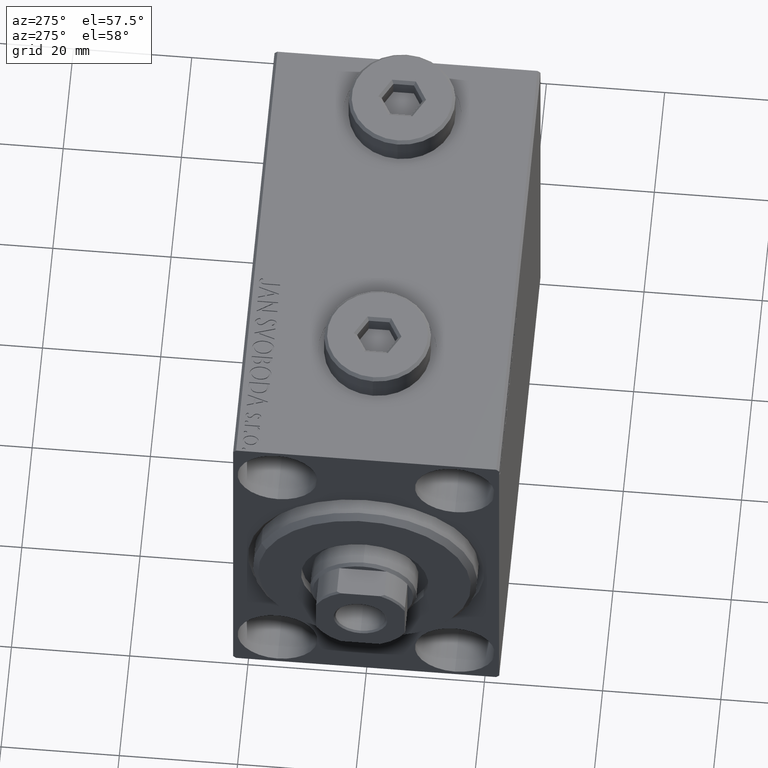
[diagram: clean part render]
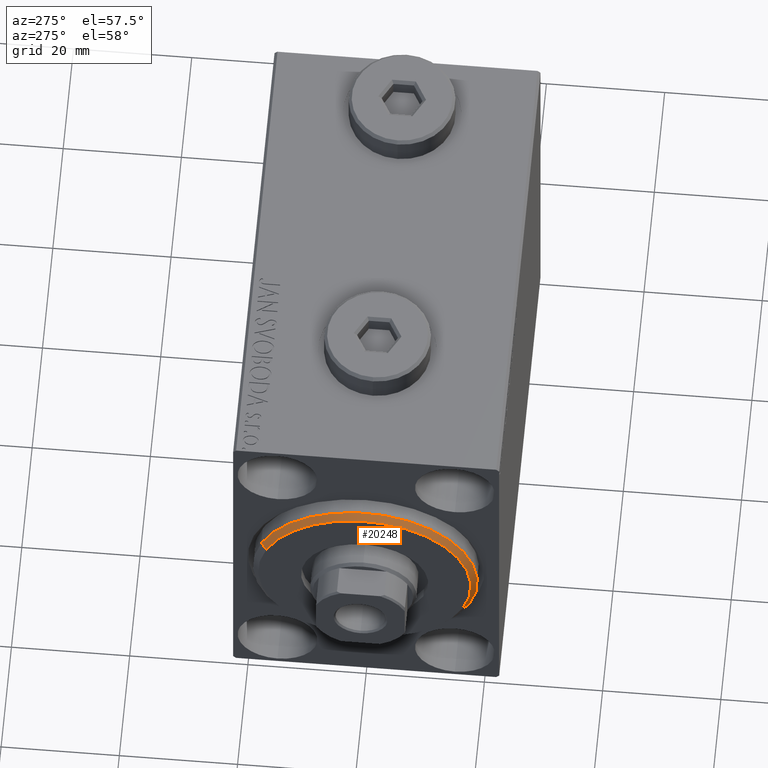
[diagram: same view with one face highlighted and labeled with its STEP entity id]
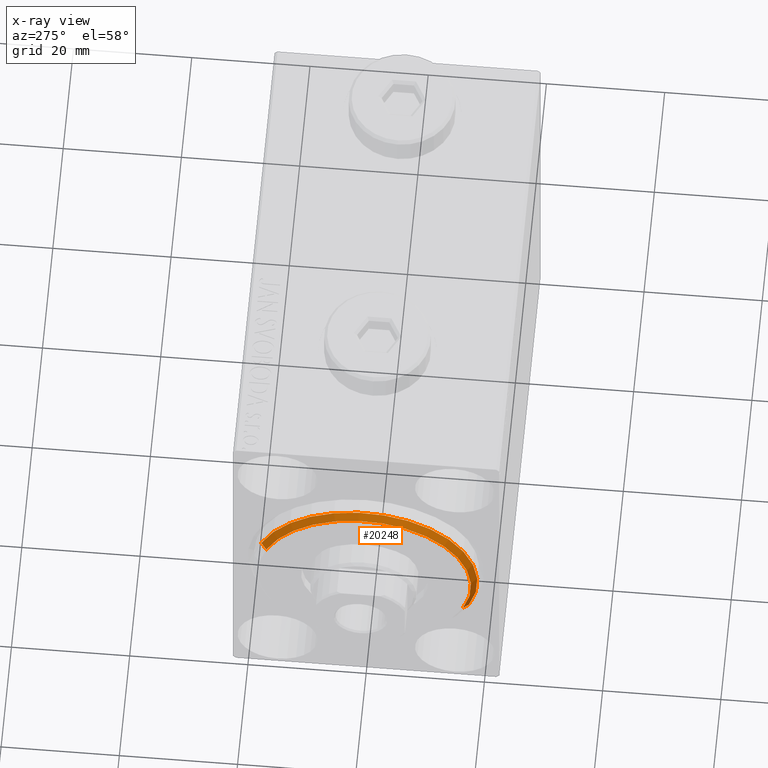
[diagram: x-ray of the same camera — body ghosted, the highlighted face saturated]
A machine part, auxiliary view. The second image highlights one B-rep face of the part: STEP entity #20248.
The next image is the same camera in x-ray: the body ghosted, the highlighted face saturated — about 0% of this face is hidden behind the body in this view.
In plain terms, the highlighted conical surface has half-angle 45 deg.
Its self-contained STEP definition (entity closure, byte-faithful):
#2542 = DIRECTION ( 'NONE',  ( -1.000000000000000000, 0.000000000000000000, 0.000000000000000000 ) ) ;
#3317 = DIRECTION ( 'NONE',  ( -0.7071067811865487940, 0.000000000000000000, 0.7071067811865463515 ) ) ;
#3598 = CIRCLE ( 'NONE', #6490, 17.99999999999999645 ) ;
#3620 = AXIS2_PLACEMENT_3D ( 'NONE', #42837, #14264, #38269 ) ;
#4450 = FACE_OUTER_BOUND ( 'NONE', #6654, .T. ) ;
#6490 = AXIS2_PLACEMENT_3D ( 'NONE', #30954, #6757, #27757 ) ;
#6654 = EDGE_LOOP ( 'NONE', ( #8645, #39684, #42576, #24850 ) ) ;
#6757 = DIRECTION ( 'NONE',  ( 1.000000000000000000, -0.000000000000000000, 0.000000000000000000 ) ) ;
#8645 = ORIENTED_EDGE ( 'NONE', *, *, #26510, .F. ) ;
#8882 = VERTEX_POINT ( 'NONE', #28447 ) ;
#11062 = CARTESIAN_POINT ( 'NONE',  ( 3.000000000000000000, 0.000000000000000000, 17.99999999999999645 ) ) ;
#11111 = CARTESIAN_POINT ( 'NONE',  ( 3.000000000000000000, 2.204364238465235033E-15, -17.99999999999999645 ) ) ;
#13465 = AXIS2_PLACEMENT_3D ( 'NONE', #30631, #2542, #16693 ) ;
#13594 = VECTOR ( 'NONE', #3317, 1000.000000000000000 ) ;
#13696 = CARTESIAN_POINT ( 'NONE',  ( 3.000000000000000000, 2.265596578422603002E-15, -17.99999999999999645 ) ) ;
#14263 = LINE ( 'NONE', #11062, #13594 ) ;
#14264 = DIRECTION ( 'NONE',  ( -1.000000000000000000, 0.000000000000000000, 0.000000000000000000 ) ) ;
#16693 = DIRECTION ( 'NONE',  ( 0.000000000000000000, 0.000000000000000000, -1.000000000000000000 ) ) ;
#17450 = CONICAL_SURFACE ( 'NONE', #3620, 17.99999999999999645, 0.7853981633974466137 ) ;
#20248 = ADVANCED_FACE ( 'NONE', ( #4450 ), #17450, .T. ) ;
#23993 = EDGE_CURVE ( 'NONE', #8882, #44256, #24391, .T. ) ;
#24391 = CIRCLE ( 'NONE', #13465, 19.00000000000000000 ) ;
#24850 = ORIENTED_EDGE ( 'NONE', *, *, #23993, .F. ) ;
#25714 = CARTESIAN_POINT ( 'NONE',  ( 1.999999999999992228, 0.000000000000000000, 19.00000000000000000 ) ) ;
#26510 = EDGE_CURVE ( 'NONE', #43280, #8882, #31907, .T. ) ;
#27757 = DIRECTION ( 'NONE',  ( 0.000000000000000000, 0.000000000000000000, -1.000000000000000000 ) ) ;
#28447 = CARTESIAN_POINT ( 'NONE',  ( 1.999999999999992228, 2.326828918379970970E-15, -19.00000000000000000 ) ) ;
#30351 = CARTESIAN_POINT ( 'NONE',  ( 3.000000000000000000, 0.000000000000000000, 17.99999999999999645 ) ) ;
#30631 = CARTESIAN_POINT ( 'NONE',  ( 1.999999999999992228, 0.000000000000000000, 0.000000000000000000 ) ) ;
#30954 = CARTESIAN_POINT ( 'NONE',  ( 3.000000000000000000, 0.000000000000000000, 0.000000000000000000 ) ) ;
#31907 = LINE ( 'NONE', #11111, #35414 ) ;
#32841 = EDGE_CURVE ( 'NONE', #41953, #44256, #14263, .T. ) ;
#35414 = VECTOR ( 'NONE', #43317, 1000.000000000000000 ) ;
#38269 = DIRECTION ( 'NONE',  ( 0.000000000000000000, 0.000000000000000000, 1.000000000000000000 ) ) ;
#39684 = ORIENTED_EDGE ( 'NONE', *, *, #40028, .F. ) ;
#40028 = EDGE_CURVE ( 'NONE', #41953, #43280, #3598, .T. ) ;
#41953 = VERTEX_POINT ( 'NONE', #30351 ) ;
#42576 = ORIENTED_EDGE ( 'NONE', *, *, #32841, .T. ) ;
#42837 = CARTESIAN_POINT ( 'NONE',  ( 3.000000000000000000, 0.000000000000000000, 0.000000000000000000 ) ) ;
#43280 = VERTEX_POINT ( 'NONE', #13696 ) ;
#43317 = DIRECTION ( 'NONE',  ( -0.7071067811865487940, 8.659560562354918067E-17, -0.7071067811865463515 ) ) ;
#44256 = VERTEX_POINT ( 'NONE', #25714 ) ;